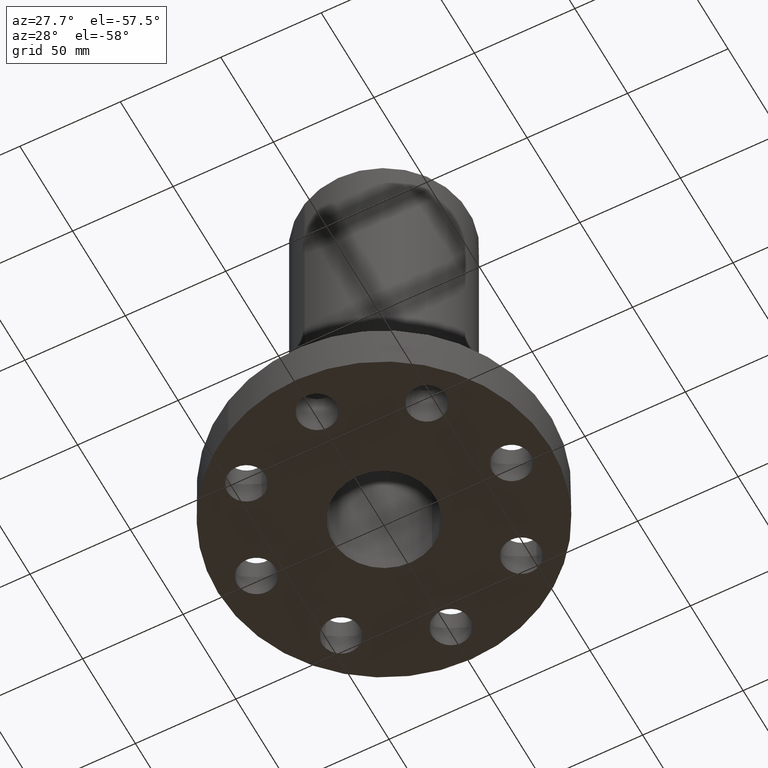
[diagram: clean part render]
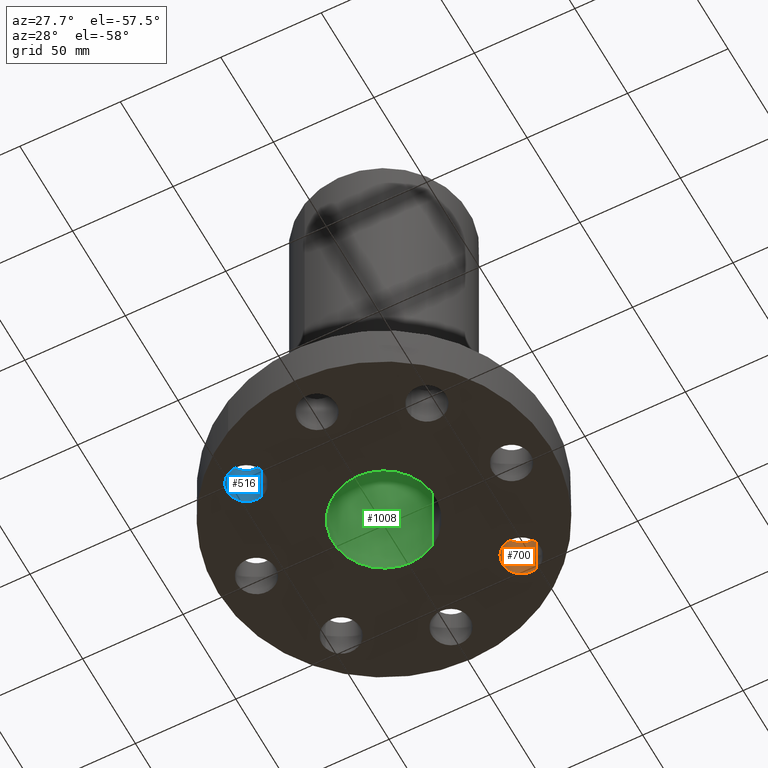
[diagram: same view with three faces highlighted in distinct colors, each labeled with its STEP entity id]
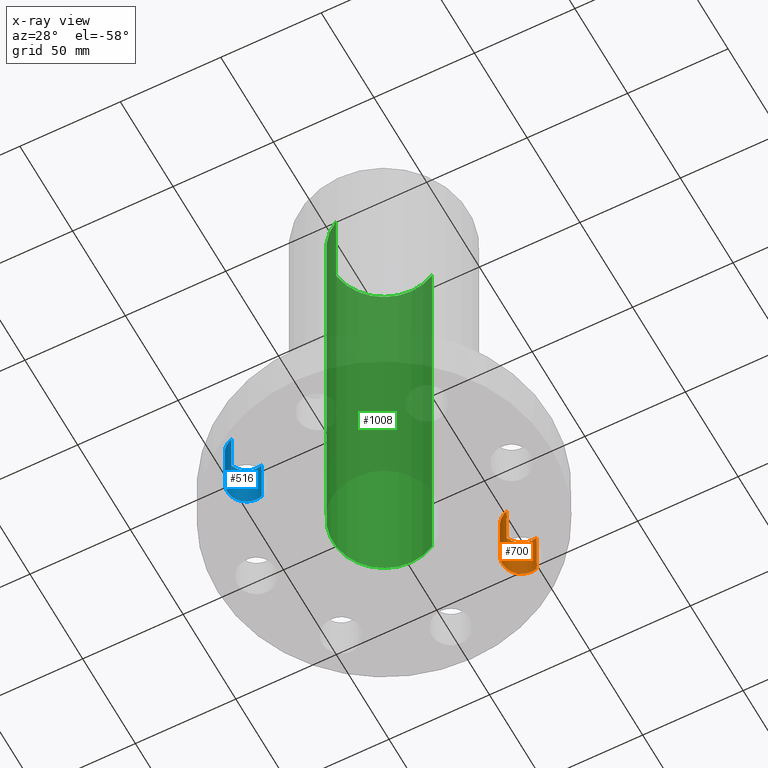
[diagram: x-ray of the same camera — body ghosted, the three highlighted faces saturated]
A machine part, auxiliary view with three faces highlighted in distinct colors.
The next image is the same camera in x-ray (body ghosted, the three faces saturated) — at least one of them is partly hidden behind the body in this view.
Their STEP definitions:

[orange] entity #700 — the highlighted cylindrical surface (edge-blend (fillet) strip) has radius 9.525 mm, axis along (0, -0, 1).
#247=AXIS2_PLACEMENT_3D('Circle Axis2P3D',#245,#246,$) ;
#661=AXIS2_PLACEMENT_3D('Cylinder Axis2P3D',#658,#659,#660) ;
#691=AXIS2_PLACEMENT_3D('Circle Axis2P3D',#689,#690,$) ;
#245=CARTESIAN_POINT('Axis2P3D Location',(1.76776695297,1.76776695297,1.)) ;
#249=CARTESIAN_POINT('Vertex',(1.66218962879,1.40793584173,1.)) ;
#251=CARTESIAN_POINT('Vertex',(1.87334427715,2.12759806422,1.)) ;
#658=CARTESIAN_POINT('Axis2P3D Location',(1.76776695297,1.76776695297,0.00393700787402)) ;
#663=CARTESIAN_POINT('Line Origine',(1.66218962879,1.40793584173,0.500000000002)) ;
#667=CARTESIAN_POINT('Vertex',(1.66218962879,1.40793584173,2.2401153548E-016)) ;
#670=CARTESIAN_POINT('Line Origine',(1.87334427715,2.12759806422,0.500000000002)) ;
#674=CARTESIAN_POINT('Vertex',(1.87334427715,2.12759806422,2.2401153548E-016)) ;
#689=CARTESIAN_POINT('Axis2P3D Location',(1.76776695297,1.76776695297,0.)) ;
#246=DIRECTION('Axis2P3D Direction',(0.,0.,-0.0393700787402)) ;
#659=DIRECTION('Axis2P3D Direction',(0.,-0.,0.0393700787402)) ;
#660=DIRECTION('Axis2P3D XDirection',(0.0110842335096,0.0377775444876,0.)) ;
#664=DIRECTION('Vector Direction',(0.,0.,0.0393700787402)) ;
#671=DIRECTION('Vector Direction',(0.,0.,0.0393700787402)) ;
#690=DIRECTION('Axis2P3D Direction',(0.,-0.,0.0393700787402)) ;
#665=VECTOR('Line Direction',#664,0.0393700787402) ;
#672=VECTOR('Line Direction',#671,0.0393700787402) ;
#695=ORIENTED_EDGE('',*,*,#676,.F.) ;
#696=ORIENTED_EDGE('',*,*,#253,.F.) ;
#697=ORIENTED_EDGE('',*,*,#669,.T.) ;
#698=ORIENTED_EDGE('',*,*,#693,.T.) ;
#700=ADVANCED_FACE('PartBody',(#699),#662,.F.) ;
#248=CIRCLE('generated circle',#247,0.375000000001) ;
#692=CIRCLE('generated circle',#691,0.375000000001) ;
#662=CYLINDRICAL_SURFACE('generated cylinder',#661,0.375000000001) ;
#253=EDGE_CURVE('',#250,#252,#248,.T.) ;
#669=EDGE_CURVE('',#250,#668,#666,.F.) ;
#676=EDGE_CURVE('',#252,#675,#673,.F.) ;
#693=EDGE_CURVE('',#668,#675,#692,.F.) ;
#694=EDGE_LOOP('',(#695,#696,#697,#698)) ;
#699=FACE_OUTER_BOUND('',#694,.T.) ;
#666=LINE('Line',#663,#665) ;
#673=LINE('Line',#670,#672) ;
#250=VERTEX_POINT('',#249) ;
#252=VERTEX_POINT('',#251) ;
#668=VERTEX_POINT('',#667) ;
#675=VERTEX_POINT('',#674) ;

[blue] entity #516 — the highlighted cylindrical surface (edge-blend (fillet) strip) has radius 9.525 mm, axis along (0, 0, 1).
#184=AXIS2_PLACEMENT_3D('Circle Axis2P3D',#182,#183,$) ;
#489=AXIS2_PLACEMENT_3D('Cylinder Axis2P3D',#486,#487,#488) ;
#507=AXIS2_PLACEMENT_3D('Circle Axis2P3D',#505,#506,$) ;
#177=CARTESIAN_POINT('Vertex',(-1.66218962879,-1.40793584173,1.)) ;
#179=CARTESIAN_POINT('Vertex',(-1.87334427715,-2.12759806422,1.)) ;
#182=CARTESIAN_POINT('Axis2P3D Location',(-1.76776695297,-1.76776695297,1.)) ;
#486=CARTESIAN_POINT('Axis2P3D Location',(-1.76776695297,-1.76776695297,0.00393700787402)) ;
#491=CARTESIAN_POINT('Line Origine',(-1.66218962879,-1.40793584173,0.500000000002)) ;
#495=CARTESIAN_POINT('Vertex',(-1.66218962879,-1.40793584173,2.2401153548E-016)) ;
#498=CARTESIAN_POINT('Line Origine',(-1.87334427715,-2.12759806422,0.500000000002)) ;
#502=CARTESIAN_POINT('Vertex',(-1.87334427715,-2.12759806422,2.2401153548E-016)) ;
#505=CARTESIAN_POINT('Axis2P3D Location',(-1.76776695297,-1.76776695297,0.)) ;
#183=DIRECTION('Axis2P3D Direction',(0.,0.,-0.0393700787402)) ;
#487=DIRECTION('Axis2P3D Direction',(0.,0.,0.0393700787402)) ;
#488=DIRECTION('Axis2P3D XDirection',(-0.0110842335096,-0.0377775444876,0.)) ;
#492=DIRECTION('Vector Direction',(0.,0.,0.0393700787402)) ;
#499=DIRECTION('Vector Direction',(0.,0.,0.0393700787402)) ;
#506=DIRECTION('Axis2P3D Direction',(0.,0.,0.0393700787402)) ;
#493=VECTOR('Line Direction',#492,0.0393700787402) ;
#500=VECTOR('Line Direction',#499,0.0393700787402) ;
#511=ORIENTED_EDGE('',*,*,#497,.F.) ;
#512=ORIENTED_EDGE('',*,*,#186,.F.) ;
#513=ORIENTED_EDGE('',*,*,#504,.T.) ;
#514=ORIENTED_EDGE('',*,*,#509,.T.) ;
#516=ADVANCED_FACE('PartBody',(#515),#490,.F.) ;
#185=CIRCLE('generated circle',#184,0.375000000001) ;
#508=CIRCLE('generated circle',#507,0.375000000001) ;
#490=CYLINDRICAL_SURFACE('generated cylinder',#489,0.375000000001) ;
#186=EDGE_CURVE('',#180,#178,#185,.T.) ;
#497=EDGE_CURVE('',#178,#496,#494,.F.) ;
#504=EDGE_CURVE('',#180,#503,#501,.F.) ;
#509=EDGE_CURVE('',#503,#496,#508,.F.) ;
#510=EDGE_LOOP('',(#511,#512,#513,#514)) ;
#515=FACE_OUTER_BOUND('',#510,.T.) ;
#494=LINE('Line',#491,#493) ;
#501=LINE('Line',#498,#500) ;
#178=VERTEX_POINT('',#177) ;
#180=VERTEX_POINT('',#179) ;
#496=VERTEX_POINT('',#495) ;
#503=VERTEX_POINT('',#502) ;

[green] entity #1008 — the highlighted cylindrical surface (partial cylindrical patch) has radius 25.4 mm, axis along (0, 0, -1).
#770=AXIS2_PLACEMENT_3D('Circle Axis2P3D',#768,#769,$) ;
#969=AXIS2_PLACEMENT_3D('Cylinder Axis2P3D',#966,#967,#968) ;
#999=AXIS2_PLACEMENT_3D('Circle Axis2P3D',#997,#998,$) ;
#768=CARTESIAN_POINT('Axis2P3D Location',(0.,0.,8.75000000003)) ;
#772=CARTESIAN_POINT('Vertex',(-0.479425538606,-0.877582561894,8.75000000004)) ;
#774=CARTESIAN_POINT('Vertex',(0.479425538606,0.877582561894,8.75000000004)) ;
#966=CARTESIAN_POINT('Axis2P3D Location',(0.,0.,4.25000000002)) ;
#975=CARTESIAN_POINT('Vertex',(-0.479425538606,-0.877582561894,0.)) ;
#977=CARTESIAN_POINT('Vertex',(0.479425538606,0.877582561894,0.)) ;
#980=CARTESIAN_POINT('Line Origine',(-0.479425538606,-0.877582561894,4.37500000002)) ;
#985=CARTESIAN_POINT('Line Origine',(0.479425538606,0.877582561894,4.37500000002)) ;
#997=CARTESIAN_POINT('Axis2P3D Location',(0.,0.,0.)) ;
#769=DIRECTION('Axis2P3D Direction',(0.,0.,-0.0393700787402)) ;
#967=DIRECTION('Axis2P3D Direction',(0.,0.,-0.0393700787402)) ;
#968=DIRECTION('Axis2P3D XDirection',(-0.0188750212049,-0.0345504945626,0.)) ;
#981=DIRECTION('Vector Direction',(0.,0.,-0.0393700787402)) ;
#986=DIRECTION('Vector Direction',(0.,0.,-0.0393700787402)) ;
#998=DIRECTION('Axis2P3D Direction',(0.,0.,-0.0393700787402)) ;
#982=VECTOR('Line Direction',#981,0.0393700787402) ;
#987=VECTOR('Line Direction',#986,0.0393700787402) ;
#1003=ORIENTED_EDGE('',*,*,#1001,.F.) ;
#1004=ORIENTED_EDGE('',*,*,#989,.F.) ;
#1005=ORIENTED_EDGE('',*,*,#776,.F.) ;
#1006=ORIENTED_EDGE('',*,*,#984,.T.) ;
#1008=ADVANCED_FACE('PartBody',(#1007),#970,.F.) ;
#771=CIRCLE('generated circle',#770,1.) ;
#1000=CIRCLE('generated circle',#999,1.) ;
#970=CYLINDRICAL_SURFACE('generated cylinder',#969,1.) ;
#776=EDGE_CURVE('',#773,#775,#771,.T.) ;
#984=EDGE_CURVE('',#773,#976,#983,.T.) ;
#989=EDGE_CURVE('',#775,#978,#988,.T.) ;
#1001=EDGE_CURVE('',#978,#976,#1000,.F.) ;
#1002=EDGE_LOOP('',(#1003,#1004,#1005,#1006)) ;
#1007=FACE_OUTER_BOUND('',#1002,.T.) ;
#983=LINE('Line',#980,#982) ;
#988=LINE('Line',#985,#987) ;
#773=VERTEX_POINT('',#772) ;
#775=VERTEX_POINT('',#774) ;
#976=VERTEX_POINT('',#975) ;
#978=VERTEX_POINT('',#977) ;